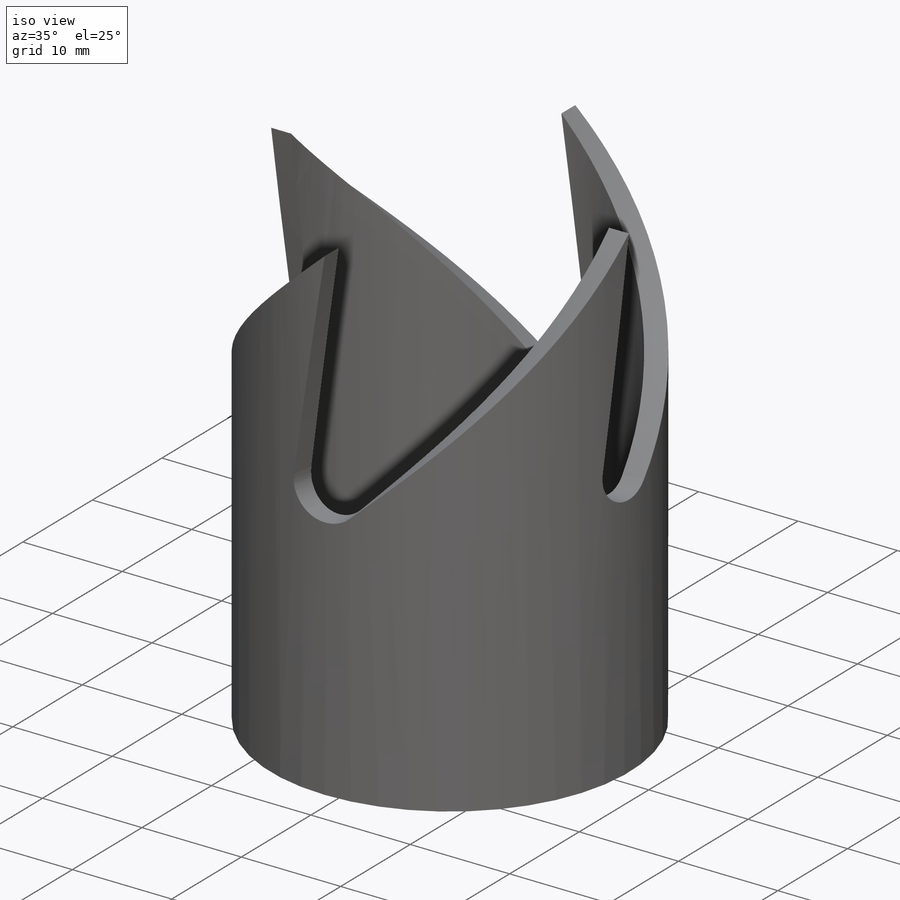
[diagram: iso view]
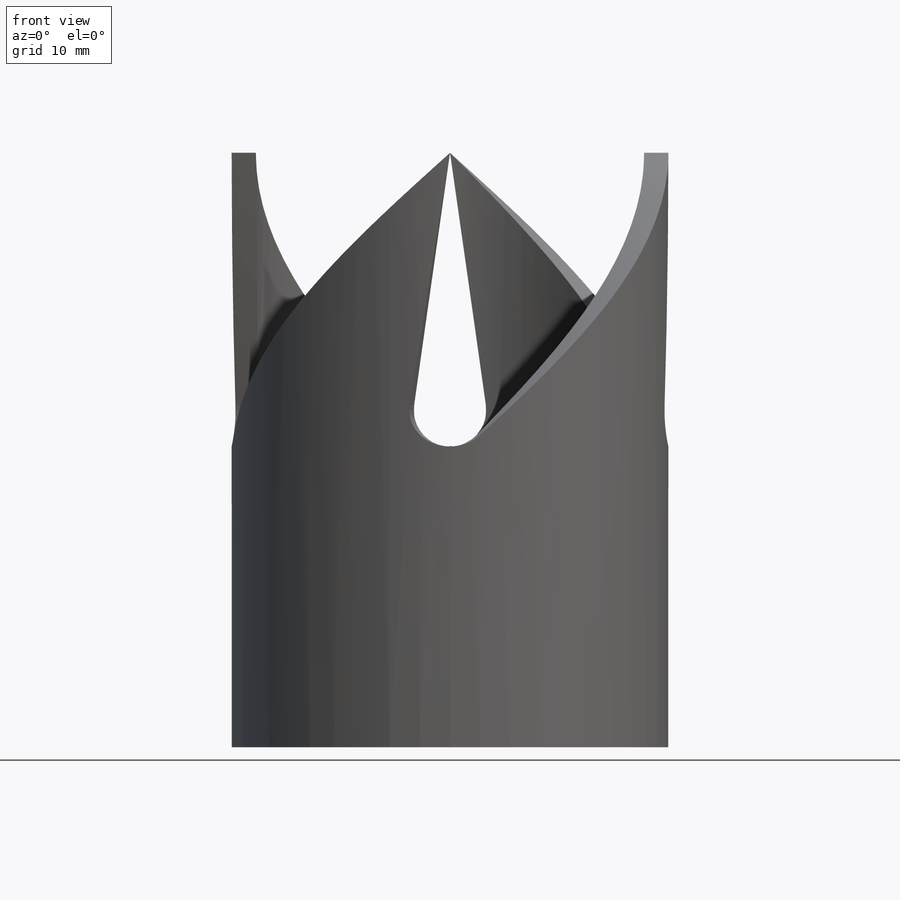
[diagram: front view]
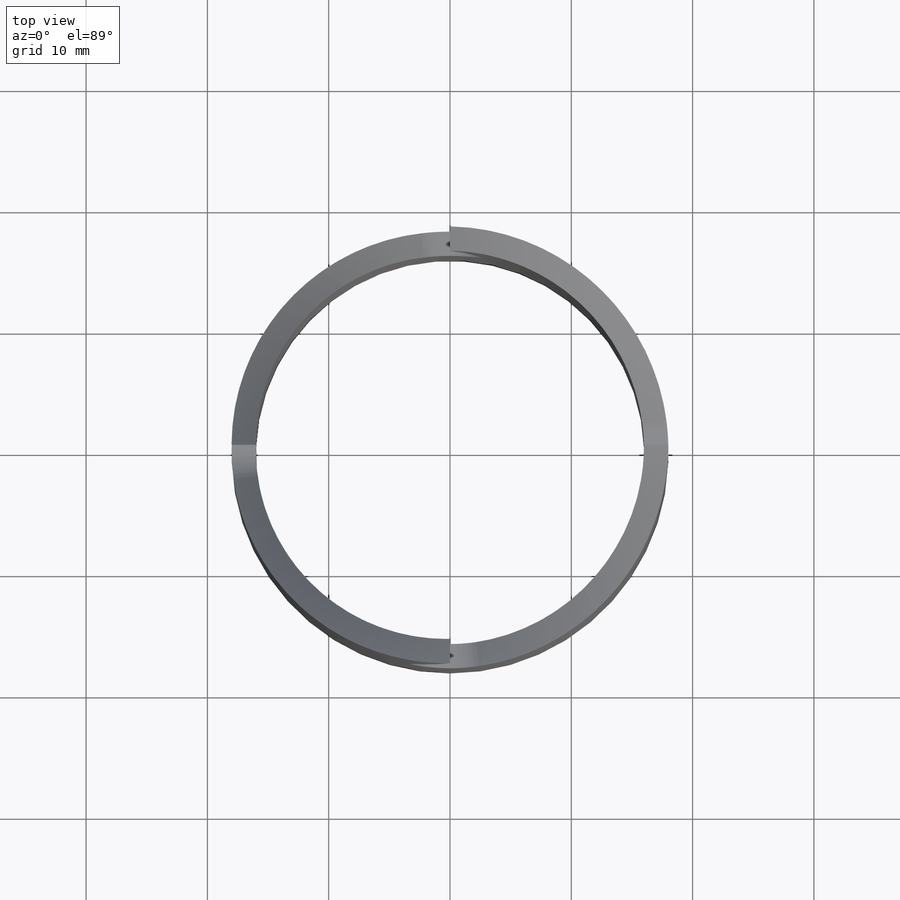
[diagram: top view]
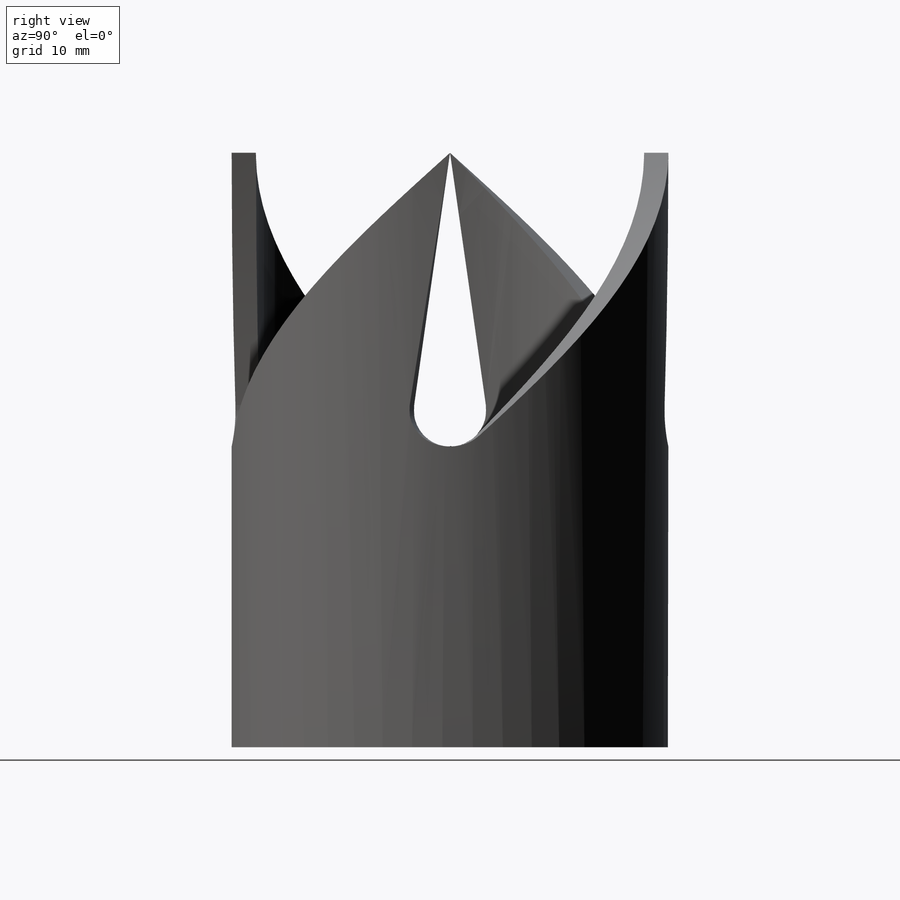
[diagram: right view]
SOLIDWORKS PART (.sldprt)
format: sldprt  version: not decoded by parser v0  size: 303,616 bytes
history: native  units: mm
features: plane x4, sketch x4, material x1, surface_op x1, pattern_circular x1, extrude x1, boolean_combine x1 (+8 scaffold rows collapsed)
feature tree (21):
  scaffold x8  (default folders/planes/origin — collapsed)
  material  "Material <nicht festgelegt>"
  plane  "Ebene vorne"
  plane  "Ebene oben"
  plane  "Ebene rechts"
  sketch  "Längen"  dims[D1=25.0mm D2=50.0mm]
  sketch  "Profil"  dims[c1.D1=36.0mm c1.D2=~61.499002mm c1.D3=32.0mm c2.D1=32.0mm c2.D3=36.0mm c2.Aussen=36.0mm c3.D3=32.0mm c3.Wand_Stärke=2.0mm c3.D4=~25.132741mm]
  plane  "Ebene1"
  sketch  "Z_Kontur"  dims[c1.D2=~3.155596mm c1.D3=2.0mm c1.D4=2.0mm c2.D3=2.0mm c2.D4=2.0mm c2.D5=2.0mm c3.D3=4.0mm c3.D2=2.0mm c4.D3=3.0mm c4.D1=25.0mm c5.D1=60.0deg c5.D2=~18.044955mm c6.D1=1.0mm c6.D2=3.0mm c6.D4=~0.108689mm c7.D2=~20.579115mm c8.D2=8.0deg c8.D4=3.0mm c9.D2=~20.582406mm c10.D2=8.0deg c10.D3=~20.784681mm c10.D1=1.0mm c11.D2=~19.17571mm c12.D2=8.0deg c12.D3=4.0mm c12.D4=~18.202123mm c13.D4=8.0deg c13.D3=4.0mm c13.D2=3.0mm]
  surface_op  "Oberfläche-Linear austragen1"
  sketch  "Skizze1"  dims[D1=36.0mm D2=2.0mm]
  pattern_circular  "Kreismuster1"  Count=4 Angle=360deg
  extrude  "Aufsatz-Linear austragen1"  [1 undecoded]
  boolean_combine  "Kombinieren1"
decode coverage: 5 of 8 modeling features carry decoded parameters
note: ~ marks probable driven/reference dimensions
note: 1 parameter value undecoded
note: suppression state not decoded; provenance and decode notes live in map.json
